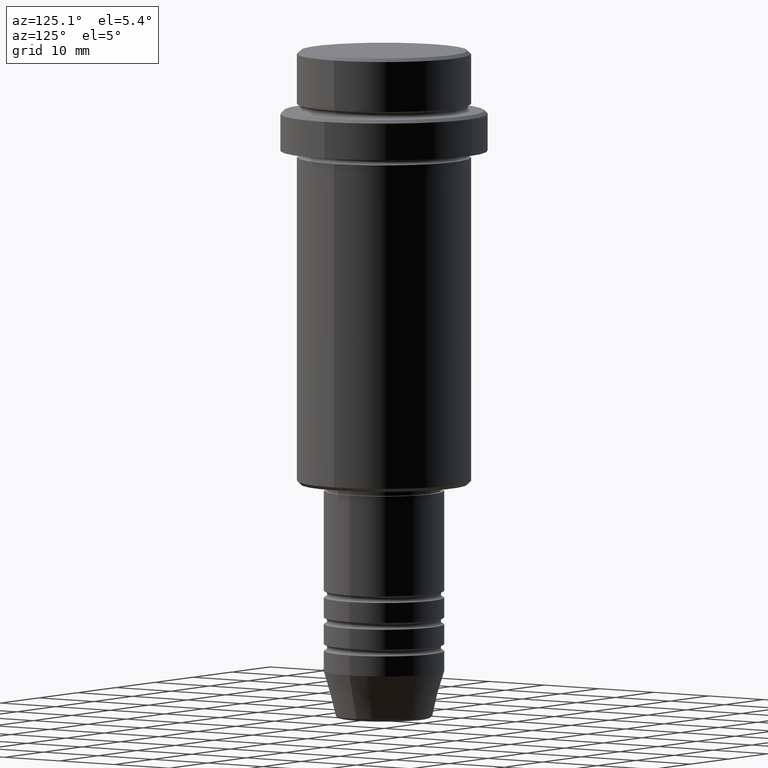
[diagram: clean part render]
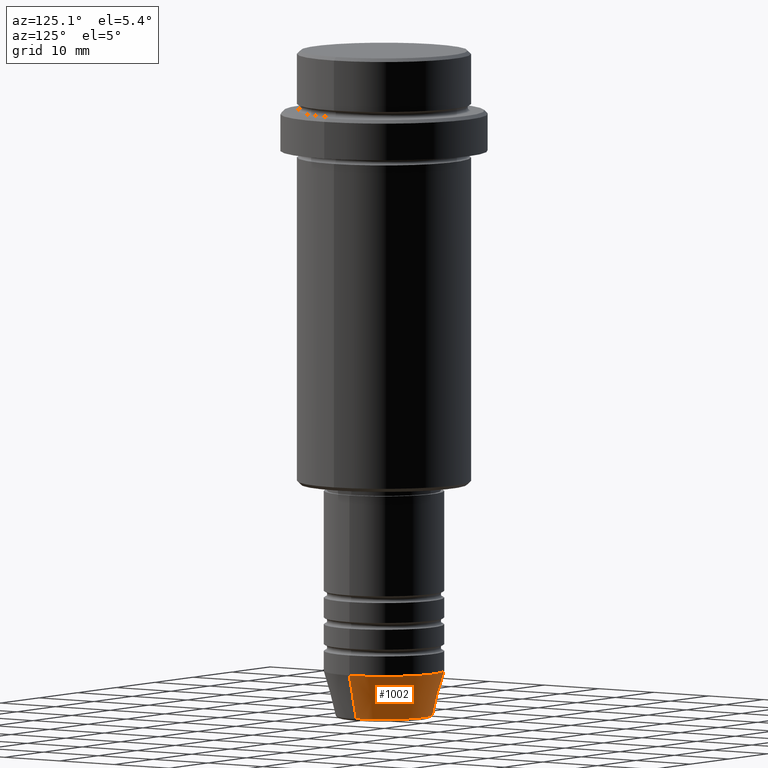
[diagram: same view with one face highlighted and labeled with its STEP entity id]
A machine part, auxiliary view. The second image highlights one B-rep face of the part: STEP entity #1002.
In plain terms, the highlighted conical surface has half-angle 15 deg.
Its self-contained STEP definition (entity closure, byte-faithful):
#10 = DIRECTION ( 'NONE',  ( -0.000000000000000000, -0.000000000000000000, 1.000000000000000000 ) ) ;
#28 = AXIS2_PLACEMENT_3D ( 'NONE', #439, #892, #555 ) ;
#39 = VERTEX_POINT ( 'NONE', #414 ) ;
#40 = LINE ( 'NONE', #1361, #144 ) ;
#43 = ORIENTED_EDGE ( 'NONE', *, *, #1318, .T. ) ;
#123 = AXIS2_PLACEMENT_3D ( 'NONE', #687, #124, #1114 ) ;
#124 = DIRECTION ( 'NONE',  ( -0.000000000000000000, -0.000000000000000000, 1.000000000000000000 ) ) ;
#144 = VECTOR ( 'NONE', #1264, 1000.000000000000000 ) ;
#315 = EDGE_CURVE ( 'NONE', #1257, #1124, #424, .T. ) ;
#322 = FACE_OUTER_BOUND ( 'NONE', #531, .T. ) ;
#343 = CARTESIAN_POINT ( 'NONE',  ( -7.223655072137189492, 9.934123627281765110E-16, -99.62940952255127058 ) ) ;
#385 = ORIENTED_EDGE ( 'NONE', *, *, #986, .F. ) ;
#393 = EDGE_CURVE ( 'NONE', #1257, #39, #40, .T. ) ;
#414 = CARTESIAN_POINT ( 'NONE',  ( 9.000000000000000000, 0.000000000000000000, -93.00000000000000000 ) ) ;
#424 = CIRCLE ( 'NONE', #123, 7.223655072137188604 ) ;
#439 = CARTESIAN_POINT ( 'NONE',  ( 0.000000000000000000, 0.000000000000000000, -93.00000000000000000 ) ) ;
#493 = ORIENTED_EDGE ( 'NONE', *, *, #315, .T. ) ;
#531 = EDGE_LOOP ( 'NONE', ( #493, #43, #385, #768 ) ) ;
#555 = DIRECTION ( 'NONE',  ( 1.000000000000000000, 0.000000000000000000, 0.000000000000000000 ) ) ;
#687 = CARTESIAN_POINT ( 'NONE',  ( 0.000000000000000000, 0.000000000000000000, -99.62940952255127058 ) ) ;
#768 = ORIENTED_EDGE ( 'NONE', *, *, #393, .F. ) ;
#770 = CONICAL_SURFACE ( 'NONE', #1064, 9.000000000000000000, 0.2617993877991500740 ) ;
#777 = DIRECTION ( 'NONE',  ( 1.000000000000000000, 0.000000000000000000, 0.000000000000000000 ) ) ;
#833 = DIRECTION ( 'NONE',  ( -0.2588190451025213501, 3.169619151431772337E-17, 0.9659258262890680902 ) ) ;
#854 = CARTESIAN_POINT ( 'NONE',  ( 7.223655072137188604, 0.000000000000000000, -99.62940952255127058 ) ) ;
#892 = DIRECTION ( 'NONE',  ( -0.000000000000000000, -0.000000000000000000, 1.000000000000000000 ) ) ;
#945 = LINE ( 'NONE', #1055, #1026 ) ;
#986 = EDGE_CURVE ( 'NONE', #39, #1160, #1085, .T. ) ;
#1002 = ADVANCED_FACE ( 'NONE', ( #322 ), #770, .T. ) ;
#1026 = VECTOR ( 'NONE', #833, 1000.000000000000000 ) ;
#1032 = CARTESIAN_POINT ( 'NONE',  ( -9.000000000000000000, 1.102182119232617714E-15, -93.00000000000000000 ) ) ;
#1055 = CARTESIAN_POINT ( 'NONE',  ( -9.000000000000000000, 1.102182119232617714E-15, -93.00000000000000000 ) ) ;
#1064 = AXIS2_PLACEMENT_3D ( 'NONE', #1077, #10, #777 ) ;
#1077 = CARTESIAN_POINT ( 'NONE',  ( 0.000000000000000000, 0.000000000000000000, -93.00000000000000000 ) ) ;
#1085 = CIRCLE ( 'NONE', #28, 9.000000000000000000 ) ;
#1114 = DIRECTION ( 'NONE',  ( 1.000000000000000000, 0.000000000000000000, 0.000000000000000000 ) ) ;
#1124 = VERTEX_POINT ( 'NONE', #343 ) ;
#1160 = VERTEX_POINT ( 'NONE', #1032 ) ;
#1257 = VERTEX_POINT ( 'NONE', #854 ) ;
#1264 = DIRECTION ( 'NONE',  ( 0.2588190451025213501, 0.000000000000000000, 0.9659258262890680902 ) ) ;
#1318 = EDGE_CURVE ( 'NONE', #1124, #1160, #945, .T. ) ;
#1361 = CARTESIAN_POINT ( 'NONE',  ( 9.000000000000000000, 0.000000000000000000, -93.00000000000000000 ) ) ;